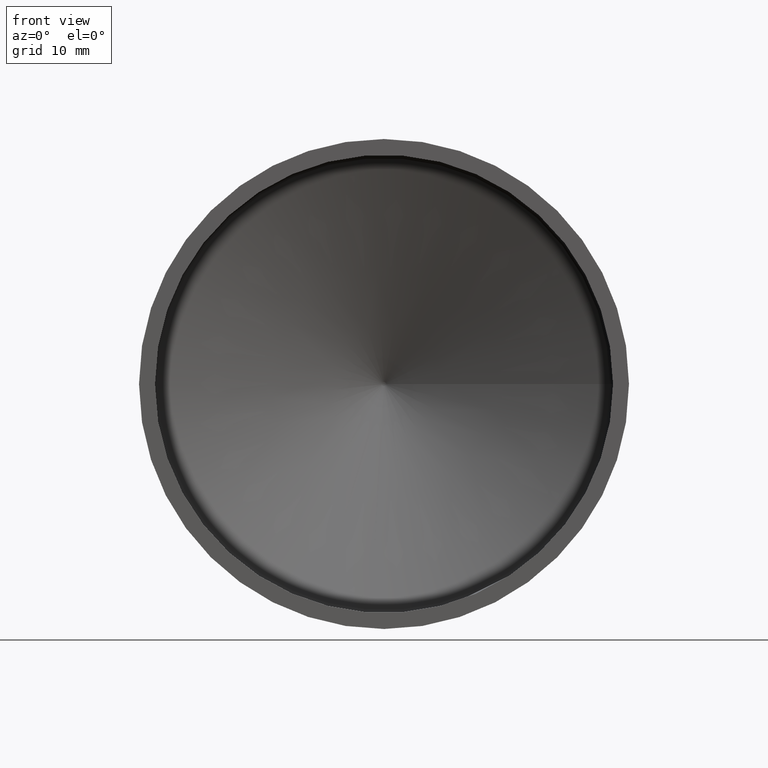
[diagram: clean part render]
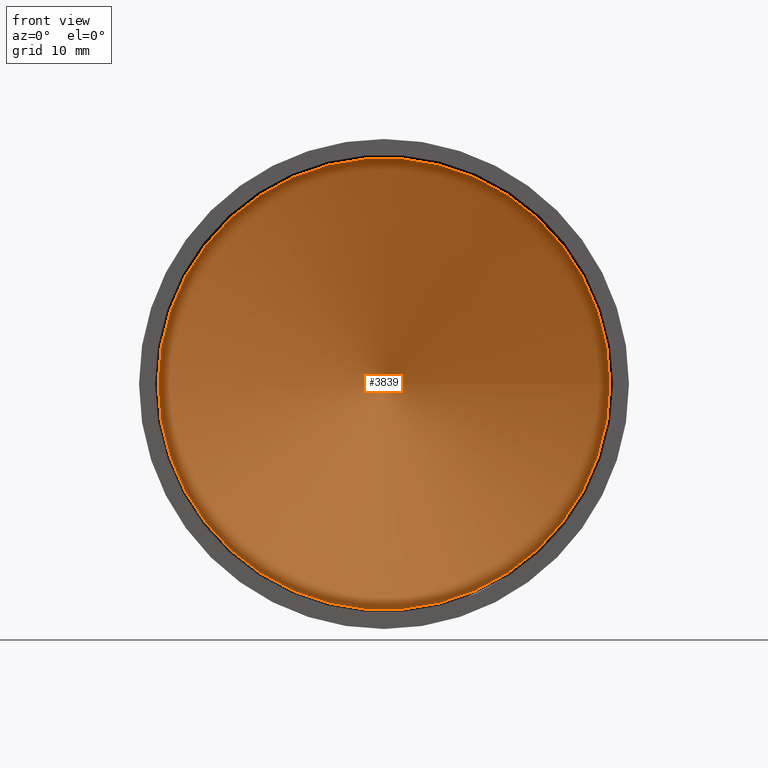
[diagram: same view with one face highlighted and labeled with its STEP entity id]
A machine part, front view. The second image highlights one B-rep face of the part: STEP entity #3839.
In plain terms, the highlighted conical surface has half-angle 66.05 deg.
Its self-contained STEP definition (entity closure, byte-faithful):
#440 = CARTESIAN_POINT ( 'NONE',  ( 3.149484518266973800E-017, 20.45695043478996700, 0.0000000000000000000 ) ) ;
#585 = EDGE_LOOP ( 'NONE', ( #3427 ) ) ;
#586 = AXIS2_PLACEMENT_3D ( 'NONE', #9112, #792, #3793 ) ;
#666 = DIRECTION ( 'NONE',  ( 2.041077998578925000E-017, -1.000000000000000000, -0.0000000000000000000 ) ) ;
#792 = DIRECTION ( 'NONE',  ( 2.041077998578925000E-017, -1.000000000000000000, -0.0000000000000000000 ) ) ;
#865 = EDGE_LOOP ( 'NONE', ( #1863 ) ) ;
#1439 = DIRECTION ( 'NONE',  ( 1.000000000000000000, 0.0000000000000000000, 0.0000000000000000000 ) ) ;
#1863 = ORIENTED_EDGE ( 'NONE', *, *, #4041, .F. ) ;
#2198 = FACE_OUTER_BOUND ( 'NONE', #585, .T. ) ;
#2535 = CIRCLE ( 'NONE', #586, 21.20296871715922300 ) ;
#3412 = CARTESIAN_POINT ( 'NONE',  ( 0.2029687171592243800, 20.45695043478996700, 0.0000000000000000000 ) ) ;
#3427 = ORIENTED_EDGE ( 'NONE', *, *, #4621, .T. ) ;
#3606 = CARTESIAN_POINT ( 'NONE',  ( 3.149484518266973800E-017, 20.45695043478996700, 0.0000000000000000000 ) ) ;
#3793 = DIRECTION ( 'NONE',  ( 1.000000000000000000, 0.0000000000000000000, 0.0000000000000000000 ) ) ;
#3839 = ADVANCED_FACE ( 'NONE', ( #2198, #5200 ), #7424, .F. ) ;
#4041 = EDGE_CURVE ( 'NONE', #9217, #9217, #4969, .T. ) ;
#4621 = EDGE_CURVE ( 'NONE', #6210, #6210, #2535, .T. ) ;
#4701 = DIRECTION ( 'NONE',  ( 2.041077998578925000E-017, -1.000000000000000000, -0.0000000000000000000 ) ) ;
#4969 = CIRCLE ( 'NONE', #5661, 0.2029687171592243500 ) ;
#5200 = FACE_BOUND ( 'NONE', #865, .T. ) ;
#5384 = DIRECTION ( 'NONE',  ( 1.000000000000000000, 0.0000000000000000000, 0.0000000000000000000 ) ) ;
#5661 = AXIS2_PLACEMENT_3D ( 'NONE', #3606, #666, #1439 ) ;
#6210 = VERTEX_POINT ( 'NONE', #8645 ) ;
#7424 = CONICAL_SURFACE ( 'NONE', #8682, 0.2029687171592243500, 1.152791979016072600 ) ;
#8645 = CARTESIAN_POINT ( 'NONE',  ( 21.20296871715922300, 11.12914869563010000, 0.0000000000000000000 ) ) ;
#8682 = AXIS2_PLACEMENT_3D ( 'NONE', #440, #4701, #5384 ) ;
#9112 = CARTESIAN_POINT ( 'NONE',  ( 2.218825542317240800E-016, 11.12914869563010000, 0.0000000000000000000 ) ) ;
#9217 = VERTEX_POINT ( 'NONE', #3412 ) ;